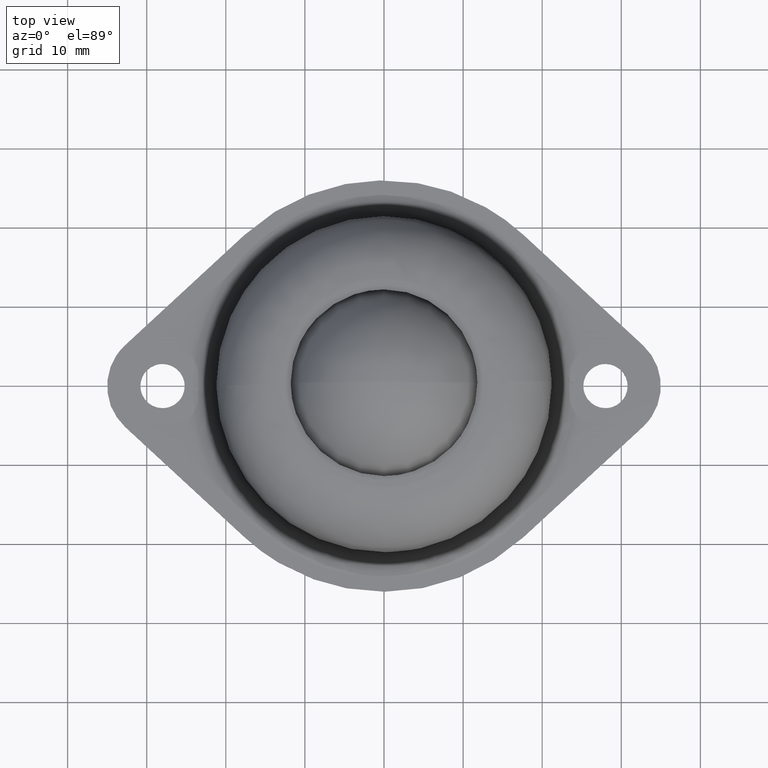
[diagram: clean part render]
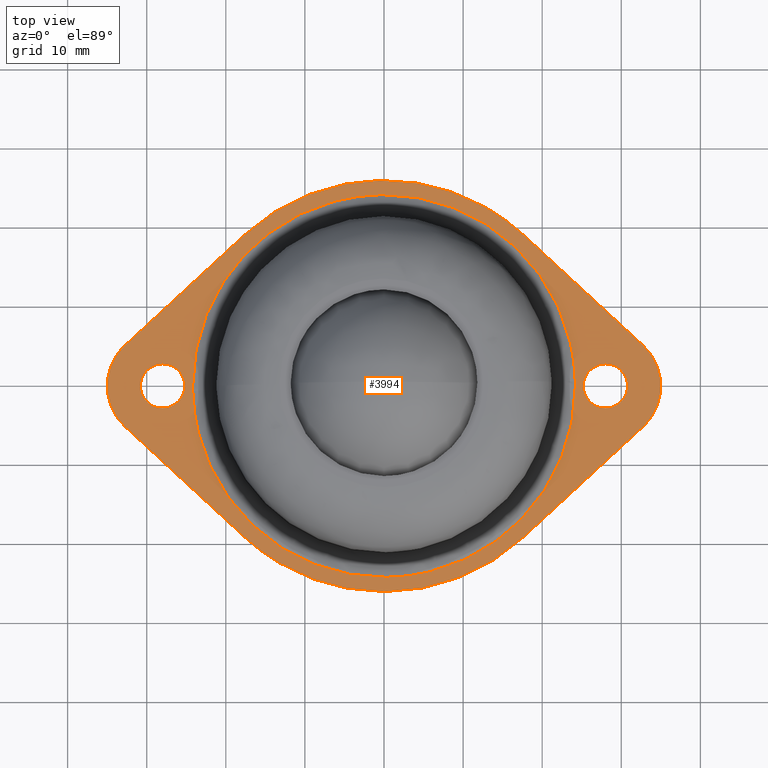
[diagram: same view with one face highlighted and labeled with its STEP entity id]
A machine part, top view. The second image highlights one B-rep face of the part: STEP entity #3994.
In plain terms, the highlighted face is a freeform B-spline surface patch.
Its self-contained STEP definition (entity closure, byte-faithful):
#2490=CARTESIAN_POINT('',(25.968951959783489,1.927392714593251,1.0));
#2491=VERTEX_POINT('',#2490);
#2497=CARTESIAN_POINT('',(25.199999999999999,0.0,1.0));
#2498=VERTEX_POINT('',#2497);
#2499=CARTESIAN_POINT('',(25.199999999999999,0.0,1.0));
#2500=CARTESIAN_POINT('',(25.199973421242841,0.188224897699242,0.999999999999999));
#2501=CARTESIAN_POINT('',(25.236995068752570,0.553574886776505,1.0));
#2502=CARTESIAN_POINT('',(25.444908174801778,1.234361321559058,1.0));
#2503=CARTESIAN_POINT('',(25.732427831506779,1.678589404813304,0.999999999999998));
#2504=CARTESIAN_POINT('',(25.968951959783489,1.927392714593251,1.0));
#2505=B_SPLINE_CURVE_WITH_KNOTS('',3,(#2499,#2500,#2501,#2502,#2503,#2504),.UNSPECIFIED.,.F.,.U.,(4,1,1,4),(0.000000023950812,0.564672074185945,1.096112349114503,2.125823479083822),.UNSPECIFIED.);
#2506=EDGE_CURVE('',#2498,#2491,#2505,.T.);
#2508=CARTESIAN_POINT('',(27.999999154508799,-2.799999999999872,1.0));
#2509=VERTEX_POINT('',#2508);
#2510=CARTESIAN_POINT('',(27.999999154508799,-2.799999999999872,1.0));
#2511=CARTESIAN_POINT('',(27.644883331728568,-2.800350481772285,0.999999999999999));
#2512=CARTESIAN_POINT('',(27.038093461507859,-2.682910345431413,1.000000000000003));
#2513=CARTESIAN_POINT('',(26.334143095025940,-2.284055842076838,0.999999999999998));
#2514=CARTESIAN_POINT('',(25.889561456533631,-1.865861122346844,1.000000000000001));
#2515=CARTESIAN_POINT('',(25.579808171783469,-1.437277371158870,0.999999999999999));
#2516=CARTESIAN_POINT('',(25.290719708908920,-0.835977749636753,1.0));
#2517=CARTESIAN_POINT('',(25.199780224807149,-0.332192779815591,0.999999999999999));
#2518=CARTESIAN_POINT('',(25.199999999999999,0.0,1.0));
#2519=B_SPLINE_CURVE_WITH_KNOTS('',3,(#2510,#2511,#2512,#2513,#2514,#2515,#2516,#2517,#2518),.UNSPECIFIED.,.F.,.U.,(4,1,1,1,1,1,4),(0.000000098548063,1.065202498120565,1.821171744755202,2.405270912355896,2.886345147545586,3.401779459272843,4.398256835523368),.UNSPECIFIED.);
#2520=EDGE_CURVE('',#2509,#2498,#2519,.T.);
#2522=CARTESIAN_POINT('',(30.031048040216511,-1.927392714593255,1.0));
#2523=VERTEX_POINT('',#2522);
#2524=CARTESIAN_POINT('',(30.031048040216511,-1.927392714593255,1.0));
#2525=CARTESIAN_POINT('',(29.851867157629499,-2.116331597186501,0.999999999999999));
#2526=CARTESIAN_POINT('',(29.468367066369652,-2.421295858934720,1.000000000000000));
#2527=CARTESIAN_POINT('',(28.769249975296280,-2.726929368976565,1.000000000000004));
#2528=CARTESIAN_POINT('',(28.272232493355261,-2.800112742756472,0.999999999999998));
#2529=CARTESIAN_POINT('',(27.999999154508799,-2.799999999999872,1.0));
#2530=B_SPLINE_CURVE_WITH_KNOTS('',3,(#2524,#2525,#2526,#2527,#2528,#2529),.UNSPECIFIED.,.F.,.U.,(4,1,1,4),(0.000000026221852,0.781150339007447,1.455772041165268,2.272434604637050),.UNSPECIFIED.);
#2531=EDGE_CURVE('',#2523,#2509,#2530,.T.);
#2571=CARTESIAN_POINT('',(30.800000000000001,0.0,1.0));
#2572=VERTEX_POINT('',#2571);
#2573=CARTESIAN_POINT('',(30.800000000000001,0.0,1.0));
#2574=CARTESIAN_POINT('',(30.800017719401190,-0.188221688659730,1.000000000000003));
#2575=CARTESIAN_POINT('',(30.757446168761440,-0.608955706871159,0.999999999999997));
#2576=CARTESIAN_POINT('',(30.528664928178230,-1.285427162218909,1.000000000000005));
#2577=CARTESIAN_POINT('',(30.229296161880399,-1.718654214940854,1.000000000000002));
#2578=CARTESIAN_POINT('',(30.031048040216511,-1.927392714593255,1.0));
#2579=B_SPLINE_CURVE_WITH_KNOTS('',3,(#2573,#2574,#2575,#2576,#2577,#2578),.UNSPECIFIED.,.F.,.U.,(4,1,1,4),(0.000000023950547,0.564672074185818,1.262201367420401,2.125823479083807),.UNSPECIFIED.);
#2580=EDGE_CURVE('',#2572,#2523,#2579,.T.);
#2582=CARTESIAN_POINT('',(28.000000845491218,2.799999999999872,1.0));
#2583=VERTEX_POINT('',#2582);
#2584=CARTESIAN_POINT('',(28.000000845491218,2.799999999999872,1.0));
#2585=CARTESIAN_POINT('',(28.274899713935561,2.800108221946402,0.999999999999998));
#2586=CARTESIAN_POINT('',(28.801701544830468,2.721782682552250,1.000000000000003));
#2587=CARTESIAN_POINT('',(29.547877516524728,2.380123426296433,0.999999999999998));
#2588=CARTESIAN_POINT('',(30.071579082011809,1.922719231740108,1.000000000000002));
#2589=CARTESIAN_POINT('',(30.438536831968559,1.408186841094348,0.999999999999997));
#2590=CARTESIAN_POINT('',(30.715611340586371,0.813106063968280,1.000000000000010));
#2591=CARTESIAN_POINT('',(30.800208439692909,0.309278637945049,0.999999999999989));
#2592=CARTESIAN_POINT('',(30.800000000000001,0.0,1.0));
#2593=B_SPLINE_CURVE_WITH_KNOTS('',3,(#2584,#2585,#2586,#2587,#2588,#2589,#2590,#2591,#2592),.UNSPECIFIED.,.F.,.U.,(4,1,1,1,1,1,4),(0.000000098573376,0.824665699015917,1.580635255141353,2.439657106825410,2.886345147554612,3.470503028095011,4.398256835523259),.UNSPECIFIED.);
#2594=EDGE_CURVE('',#2583,#2572,#2593,.T.);
#2596=CARTESIAN_POINT('',(25.968951959783489,1.927392714593251,1.0));
#2597=CARTESIAN_POINT('',(26.196921719001779,2.167983111778549,1.000000000000000));
#2598=CARTESIAN_POINT('',(26.594231770015298,2.459648169980239,0.999999999999999));
#2599=CARTESIAN_POINT('',(27.301776222588131,2.737328843908558,1.000000000000000));
#2600=CARTESIAN_POINT('',(27.727765224087300,2.800129395793765,1.000000000000001));
#2601=CARTESIAN_POINT('',(28.000000845491218,2.799999999999872,1.0));
#2602=B_SPLINE_CURVE_WITH_KNOTS('',3,(#2596,#2597,#2598,#2599,#2600,#2601),.UNSPECIFIED.,.F.,.U.,(4,1,1,4),(0.000000026225122,0.994201573523089,1.455772041165953,2.272434604637065),.UNSPECIFIED.);
#2603=EDGE_CURVE('',#2491,#2583,#2602,.T.);
#2690=CARTESIAN_POINT('',(-30.031048040216511,1.927392714593253,1.0));
#2691=VERTEX_POINT('',#2690);
#2697=CARTESIAN_POINT('',(-30.800000000000001,0.0,1.0));
#2698=VERTEX_POINT('',#2697);
#2699=CARTESIAN_POINT('',(-30.800000000000001,0.0,1.0));
#2700=CARTESIAN_POINT('',(-30.800256849308440,0.332205758625949,0.999999999999998));
#2701=CARTESIAN_POINT('',(-30.716270393622889,0.797029545476190,1.000000000000004));
#2702=CARTESIAN_POINT('',(-30.421939490760721,1.443623563409458,0.999999999999997));
#2703=CARTESIAN_POINT('',(-30.198781787522421,1.750748101902086,1.000000000000000));
#2704=CARTESIAN_POINT('',(-30.031048040216511,1.927392714593253,1.0));
#2705=B_SPLINE_CURVE_WITH_KNOTS('',3,(#2699,#2700,#2701,#2702,#2703,#2704),.UNSPECIFIED.,.F.,.U.,(4,1,1,4),(0.000000023950637,0.996483282876328,1.395066415730126,2.125823479083806),.UNSPECIFIED.);
#2706=EDGE_CURVE('',#2698,#2691,#2705,.T.);
#2708=CARTESIAN_POINT('',(-28.000000845491201,-2.799999999999872,1.0));
#2709=VERTEX_POINT('',#2708);
#2710=CARTESIAN_POINT('',(-28.000000845491201,-2.799999999999872,1.0));
#2711=CARTESIAN_POINT('',(-28.355119487596280,-2.800351157323797,1.0));
#2712=CARTESIAN_POINT('',(-28.961893965066800,-2.682897841856384,1.0));
#2713=CARTESIAN_POINT('',(-29.736292755341911,-2.244208654907654,1.0));
#2714=CARTESIAN_POINT('',(-30.237625426202751,-1.730423854099129,0.999999999999998));
#2715=CARTESIAN_POINT('',(-30.556273996539421,-1.183454946457047,1.000000000000001));
#2716=CARTESIAN_POINT('',(-30.750513241014549,-0.629925620482051,0.999999999999999));
#2717=CARTESIAN_POINT('',(-30.800060054805819,-0.229077006390447,1.000000000000003));
#2718=CARTESIAN_POINT('',(-30.800000000000001,0.0,1.0));
#2719=B_SPLINE_CURVE_WITH_KNOTS('',3,(#2710,#2711,#2712,#2713,#2714,#2715,#2716,#2717,#2718),.UNSPECIFIED.,.F.,.U.,(4,1,1,1,1,1,4),(0.000000098570556,1.065202498139127,1.821171744770200,2.645807579460606,3.195605844278639,3.711040155849163,4.398256835523267),.UNSPECIFIED.);
#2720=EDGE_CURVE('',#2709,#2698,#2719,.T.);
#2722=CARTESIAN_POINT('',(-25.968951959783489,-1.927392714593253,1.0));
#2723=VERTEX_POINT('',#2722);
#2724=CARTESIAN_POINT('',(-25.968951959783489,-1.927392714593253,1.0));
#2725=CARTESIAN_POINT('',(-26.107428792546148,-2.073365508782845,1.000000000000004));
#2726=CARTESIAN_POINT('',(-26.379741808303891,-2.304427490427256,0.999999999999995));
#2727=CARTESIAN_POINT('',(-26.855549894008359,-2.572823740229463,0.999999999999996));
#2728=CARTESIAN_POINT('',(-27.384571072013660,-2.753856023371658,1.000000000000022));
#2729=CARTESIAN_POINT('',(-27.786957241669750,-2.800039972948537,0.999999999999980));
#2730=CARTESIAN_POINT('',(-28.000000845491201,-2.799999999999872,1.0));
#2731=B_SPLINE_CURVE_WITH_KNOTS('',3,(#2724,#2725,#2726,#2727,#2728,#2729,#2730),.UNSPECIFIED.,.F.,.U.,(4,1,1,1,4),(0.000000026226631,0.603615896797822,1.065212435991397,1.633310791688826,2.272434604637051),.UNSPECIFIED.);
#2732=EDGE_CURVE('',#2723,#2709,#2731,.T.);
#2772=CARTESIAN_POINT('',(-25.199999999999999,0.0,1.0));
#2773=VERTEX_POINT('',#2772);
#2774=CARTESIAN_POINT('',(-25.199999999999999,0.0,1.0));
#2775=CARTESIAN_POINT('',(-25.199989663495270,-0.166078562572073,0.999999999999999));
#2776=CARTESIAN_POINT('',(-25.233573911888019,-0.542520759875150,0.999999999999999));
#2777=CARTESIAN_POINT('',(-25.437850266808280,-1.225762061038599,1.000000000000003));
#2778=CARTESIAN_POINT('',(-25.740085858360821,-1.686610441081308,0.999999999999995));
#2779=CARTESIAN_POINT('',(-25.968951959783489,-1.927392714593253,1.0));
#2780=B_SPLINE_CURVE_WITH_KNOTS('',3,(#2774,#2775,#2776,#2777,#2778,#2779),.UNSPECIFIED.,.F.,.U.,(4,1,1,4),(0.000000023949566,0.498239701281631,1.129340220183776,2.125823479083824),.UNSPECIFIED.);
#2781=EDGE_CURVE('',#2773,#2723,#2780,.T.);
#2783=CARTESIAN_POINT('',(-27.999999154508789,2.799999999999872,1.0));
#2784=VERTEX_POINT('',#2783);
#2785=CARTESIAN_POINT('',(-27.999999154508789,2.799999999999872,1.0));
#2786=CARTESIAN_POINT('',(-27.690724252621528,2.800189119311187,1.000000000000003));
#2787=CARTESIAN_POINT('',(-27.141079284342240,2.707959491169660,0.999999999999994));
#2788=CARTESIAN_POINT('',(-26.437424074776199,2.359173435847647,1.000000000000006));
#2789=CARTESIAN_POINT('',(-25.939381920456430,1.929483463386293,0.999999999999995));
#2790=CARTESIAN_POINT('',(-25.562300418716742,1.421052165552400,1.000000000000004));
#2791=CARTESIAN_POINT('',(-25.277986109779619,0.790245299074178,0.999999999999998));
#2792=CARTESIAN_POINT('',(-25.199874964057280,0.286353944472991,0.999999999999999));
#2793=CARTESIAN_POINT('',(-25.199999999999999,0.0,1.0));
#2794=B_SPLINE_CURVE_WITH_KNOTS('',3,(#2785,#2786,#2787,#2788,#2789,#2790,#2791,#2792,#2793),.UNSPECIFIED.,.F.,.U.,(4,1,1,1,1,1,4),(0.000000098548110,0.927756297414711,1.649354845515874,2.336550673854224,2.886345147545901,3.539225127852387,4.398256835523361),.UNSPECIFIED.);
#2795=EDGE_CURVE('',#2784,#2773,#2794,.T.);
#2797=CARTESIAN_POINT('',(-30.031048040216511,1.927392714593253,1.0));
#2798=CARTESIAN_POINT('',(-29.811222548795019,2.159371048825118,0.999999999999999));
#2799=CARTESIAN_POINT('',(-29.368025510316549,2.489133428188108,0.999999999999999));
#2800=CARTESIAN_POINT('',(-28.650944288010241,2.749804269152883,1.000000000000006));
#2801=CARTESIAN_POINT('',(-28.213040065328340,2.800033670385886,0.999999999999993));
#2802=CARTESIAN_POINT('',(-27.999999154508789,2.799999999999872,1.0));
#2803=B_SPLINE_CURVE_WITH_KNOTS('',3,(#2797,#2798,#2799,#2800,#2801,#2802),.UNSPECIFIED.,.F.,.U.,(4,1,1,4),(0.000000026226481,0.958683883978144,1.633310791688661,2.272434604637061),.UNSPECIFIED.);
#2804=EDGE_CURVE('',#2691,#2784,#2803,.T.);
#3409=CARTESIAN_POINT('',(-24.192352247396130,-0.608134938110757,1.000000000009965));
#3410=VERTEX_POINT('',#3409);
#3411=CARTESIAN_POINT('',(-24.199999999999999,0.0,1.0));
#3412=VERTEX_POINT('',#3411);
#3413=CARTESIAN_POINT('',(-24.192352247396130,-0.608134938110757,1.000000000009965));
#3414=CARTESIAN_POINT('',(-24.197448669709800,-0.405467624874414,1.000000000006643));
#3415=CARTESIAN_POINT('',(-24.199998221008009,-0.202731788623267,1.000000000003323));
#3416=CARTESIAN_POINT('',(-24.199999999999999,0.0,1.0));
#3417=B_SPLINE_CURVE_WITH_KNOTS('',3,(#3413,#3414,#3415,#3416),.UNSPECIFIED.,.F.,.U.,(4,4),(9.872769E-012,0.608200031036960),.UNSPECIFIED.);
#3418=EDGE_CURVE('',#3410,#3412,#3417,.T.);
#3437=CARTESIAN_POINT('',(24.192352247396130,0.608134938110752,1.000000000009965));
#3438=VERTEX_POINT('',#3437);
#3452=CARTESIAN_POINT('',(-0.304077485082230,24.198089495253750,1.000000000004983));
#3453=VERTEX_POINT('',#3452);
#3454=CARTESIAN_POINT('',(-0.304077485082230,24.198089495253750,1.000000000004983));
#3455=CARTESIAN_POINT('',(0.481463334631813,24.207959075437440,1.000000000005148));
#3456=CARTESIAN_POINT('',(2.495664211488906,24.135214314289101,1.000000000005553));
#3457=CARTESIAN_POINT('',(5.363449077482597,23.669751672229779,1.000000000006152));
#3458=CARTESIAN_POINT('',(8.000801849044244,22.877540328559078,1.000000000006687));
#3459=CARTESIAN_POINT('',(10.231343280681170,21.970773764954188,1.000000000007150));
#3460=CARTESIAN_POINT('',(12.193647527066950,20.948012188875680,1.000000000007546));
#3461=CARTESIAN_POINT('',(14.293098873722681,19.578936993809439,1.000000000007977));
#3462=CARTESIAN_POINT('',(16.131290009033371,18.097651032370511,1.000000000008350));
#3463=CARTESIAN_POINT('',(17.979987914952812,16.262312391915881,1.000000000008720));
#3464=CARTESIAN_POINT('',(19.910620783398709,13.902000044059550,1.000000000009124));
#3465=CARTESIAN_POINT('',(21.640681168729429,11.032180272099120,1.000000000009465));
#3466=CARTESIAN_POINT('',(22.885321415881290,8.032905750251604,1.000000000009716));
#3467=CARTESIAN_POINT('',(23.842492002992380,4.675881128871554,1.000000000009905));
#3468=CARTESIAN_POINT('',(24.151860160952950,2.227962727415263,1.000000000009961));
#3469=CARTESIAN_POINT('',(24.192352247396130,0.608134938110752,1.000000000009965));
#3470=B_SPLINE_CURVE_WITH_KNOTS('',3,(#3454,#3455,#3456,#3457,#3458,#3459,#3460,#3461,#3462,#3463,#3464,#3465,#3466,#3467,#3468,#3469),.UNSPECIFIED.,.F.,.U.,(4,1,1,1,1,1,1,1,1,1,1,1,1,4),(0.000000027832790,2.356816451351158,6.039365109413804,8.690792741793299,10.605719566030800,13.257150465588939,15.319387503597360,18.118111503503329,20.327603868102599,23.126334609953680,27.250797374373839,30.344131884838390,32.848269852201739,37.709211429184712),.UNSPECIFIED.);
#3471=EDGE_CURVE('',#3453,#3438,#3470,.T.);
#3473=CARTESIAN_POINT('',(-24.199999999999999,0.0,1.0));
#3474=CARTESIAN_POINT('',(-24.200053795397942,1.129306399135851,1.000000000000001));
#3475=CARTESIAN_POINT('',(-24.058817394107280,3.142412268996527,1.000000000000042));
#3476=CARTESIAN_POINT('',(-23.459233747036208,6.181817090687202,1.000000000000171));
#3477=CARTESIAN_POINT('',(-22.586140730369390,8.847486787489286,1.000000000000345));
#3478=CARTESIAN_POINT('',(-21.342433084207439,11.522482821705450,1.000000000000638));
#3479=CARTESIAN_POINT('',(-20.054785945213862,13.618619847224620,1.000000000000878));
#3480=CARTESIAN_POINT('',(-18.505947702803649,15.650549321210891,1.000000000001218));
#3481=CARTESIAN_POINT('',(-16.971051983046291,17.312625528740060,1.000000000001531));
#3482=CARTESIAN_POINT('',(-14.867891076815919,19.163554629678771,1.000000000001976));
#3483=CARTESIAN_POINT('',(-12.561934260067741,20.761655015508740,1.000000000002442));
#3484=CARTESIAN_POINT('',(-10.160309758107861,22.006458878366740,1.000000000002957));
#3485=CARTESIAN_POINT('',(-7.742515250865094,22.974444582324200,1.000000000003446));
#3486=CARTESIAN_POINT('',(-4.572051660319690,23.877148032280811,1.000000000004105));
#3487=CARTESIAN_POINT('',(-1.924279200966143,24.177925352123012,1.000000000004648));
#3488=CARTESIAN_POINT('',(-0.304077485082230,24.198089495253750,1.000000000004983));
#3489=B_SPLINE_CURVE_WITH_KNOTS('',3,(#3473,#3474,#3475,#3476,#3477,#3478,#3479,#3480,#3481,#3482,#3483,#3484,#3485,#3486,#3487,#3488),.UNSPECIFIED.,.F.,.U.,(4,1,1,1,1,1,1,1,1,1,1,1,1,4),(0.000000027843555,3.387918101209849,6.039370478473003,9.280009307577906,11.784142758634420,14.877479646169419,16.645118901846839,19.443804437992011,21.653332274526321,25.041295649224960,27.840027852684539,29.754955368030441,32.848299054563839,37.709244952919050),.UNSPECIFIED.);
#3490=EDGE_CURVE('',#3412,#3453,#3489,.T.);
#3524=CARTESIAN_POINT('',(24.199999999999999,0.0,1.0));
#3525=VERTEX_POINT('',#3524);
#3526=CARTESIAN_POINT('',(0.304077485082244,-24.198089495253750,1.000000000004983));
#3527=VERTEX_POINT('',#3526);
#3528=CARTESIAN_POINT('',(24.199999999999999,0.0,1.0));
#3529=CARTESIAN_POINT('',(24.200051566184449,-1.129306341161683,1.000000000000006));
#3530=CARTESIAN_POINT('',(24.041610870094740,-3.387916104696887,1.000000000000040));
#3531=CARTESIAN_POINT('',(23.313201780237051,-6.805845539358537,1.000000000000196));
#3532=CARTESIAN_POINT('',(22.094380734522151,-10.082781442620490,1.000000000000480));
#3533=CARTESIAN_POINT('',(20.507025905879050,-12.973427580696800,1.000000000000768));
#3534=CARTESIAN_POINT('',(18.565701122142411,-15.636107328816299,1.000000000001214));
#3535=CARTESIAN_POINT('',(16.317547766493899,-17.983103880876641,1.000000000001664));
#3536=CARTESIAN_POINT('',(13.720640952438441,-20.014614551971221,1.000000000002212));
#3537=CARTESIAN_POINT('',(10.929371050899780,-21.672800308188471,1.000000000002788));
#3538=CARTESIAN_POINT('',(8.075182290818130,-22.886657456597590,1.000000000003380));
#3539=CARTESIAN_POINT('',(4.473968147680772,-23.888245323290441,1.000000000004123));
#3540=CARTESIAN_POINT('',(1.924284266677746,-24.177935670849319,1.000000000004650));
#3541=CARTESIAN_POINT('',(0.304077485082244,-24.198089495253750,1.000000000004983));
#3542=B_SPLINE_CURVE_WITH_KNOTS('',3,(#3528,#3529,#3530,#3531,#3532,#3533,#3534,#3535,#3536,#3537,#3538,#3539,#3540,#3541),.UNSPECIFIED.,.F.,.U.,(4,1,1,1,1,1,1,1,1,1,1,4),(0.000000027840692,3.387918101207362,6.775879419581958,10.458424896135369,13.846377785282710,16.645118901845681,20.327621939425601,23.568278137384279,26.514313158542670,30.049560978753490,32.848299054563810,37.709244952919043),.UNSPECIFIED.);
#3543=EDGE_CURVE('',#3525,#3527,#3542,.T.);
#3545=CARTESIAN_POINT('',(24.192352247396130,0.608134938110752,1.000000000009965));
#3546=CARTESIAN_POINT('',(24.197448669709789,0.405467624874410,1.000000000006643));
#3547=CARTESIAN_POINT('',(24.199998221008030,0.202731788623266,1.000000000003323));
#3548=CARTESIAN_POINT('',(24.199999999999999,0.0,1.0));
#3549=B_SPLINE_CURVE_WITH_KNOTS('',3,(#3545,#3546,#3547,#3548),.UNSPECIFIED.,.F.,.U.,(4,4),(9.872880E-012,0.608200031036954),.UNSPECIFIED.);
#3550=EDGE_CURVE('',#3438,#3525,#3549,.T.);
#3558=CARTESIAN_POINT('',(0.304077485082244,-24.198089495253750,1.000000000004983));
#3559=CARTESIAN_POINT('',(-0.726949551724494,-24.211081766900811,1.000000000005198));
#3560=CARTESIAN_POINT('',(-2.741519756263788,-24.107494983230151,1.000000000005606));
#3561=CARTESIAN_POINT('',(-5.598921522220547,-23.598979757542430,1.000000000006199));
#3562=CARTESIAN_POINT('',(-8.000804306749890,-22.877552137843150,1.000000000006687));
#3563=CARTESIAN_POINT('',(-10.231338383055940,-21.970764592923530,1.000000000007146));
#3564=CARTESIAN_POINT('',(-12.586135400534930,-20.743500421070280,1.000000000007627));
#3565=CARTESIAN_POINT('',(-14.893313220161881,-19.147195197740679,1.000000000008117));
#3566=CARTESIAN_POINT('',(-17.176762746262462,-17.128488010400410,1.000000000008515));
#3567=CARTESIAN_POINT('',(-19.043871240518900,-15.034412062668791,1.000000000008963));
#3568=CARTESIAN_POINT('',(-20.913407407652489,-12.321508255593519,1.000000000009314));
#3569=CARTESIAN_POINT('',(-22.250403149240778,-9.685989252356302,1.000000000009592));
#3570=CARTESIAN_POINT('',(-23.287986957675781,-6.767956844295084,1.000000000009795));
#3571=CARTESIAN_POINT('',(-23.958226187406542,-3.893004877687685,1.000000000009926));
#3572=CARTESIAN_POINT('',(-24.164028921092449,-1.737091755116688,1.000000000009963));
#3573=CARTESIAN_POINT('',(-24.192352247396130,-0.608134938110757,1.000000000009965));
#3574=B_SPLINE_CURVE_WITH_KNOTS('',3,(#3558,#3559,#3560,#3561,#3562,#3563,#3564,#3565,#3566,#3567,#3568,#3569,#3570,#3571,#3572,#3573),.UNSPECIFIED.,.F.,.U.,(4,1,1,1,1,1,1,1,1,1,1,1,1,4),(0.000000027840045,3.093326412686714,6.039365109419212,8.690792741798074,10.605719566035191,13.257150465592270,16.645104104186100,19.001889179605499,22.389823806390758,25.041273387353421,28.871116113378928,31.227946597897191,34.321279061688159,37.709211429184727),.UNSPECIFIED.);
#3575=EDGE_CURVE('',#3527,#3410,#3574,.T.);
#3594=CARTESIAN_POINT('',(-32.750000000000000,5.141740950300781,1.0));
#3595=VERTEX_POINT('',#3594);
#3601=CARTESIAN_POINT('',(-17.642857142857149,19.097894958260049,1.0));
#3602=VERTEX_POINT('',#3601);
#3603=CARTESIAN_POINT('',(-32.750000000000000,5.141740950300781,1.0));
#3604=CARTESIAN_POINT('',(-17.642857142857149,19.097894958260049,1.0));
#3605=QUASI_UNIFORM_CURVE('',1,(#3603,#3604),.UNSPECIFIED.,.F.,.U.);
#3606=EDGE_CURVE('',#3595,#3602,#3605,.T.);
#3648=CARTESIAN_POINT('',(-32.750000000000000,-5.141740950300781,1.0));
#3649=VERTEX_POINT('',#3648);
#3655=CARTESIAN_POINT('',(-32.750000000000000,-5.141740950300781,1.0));
#3656=CARTESIAN_POINT('',(-33.169878033596113,-4.754061016272321,1.000000000000002));
#3657=CARTESIAN_POINT('',(-33.776657987584557,-4.036941045118616,0.999999999999995));
#3658=CARTESIAN_POINT('',(-34.387115677748760,-2.926649172714893,1.000000000000008));
#3659=CARTESIAN_POINT('',(-34.722027319801548,-2.021730408721604,0.999999999999990));
#3660=CARTESIAN_POINT('',(-34.937678337429162,-1.082054485110153,0.999999999999998));
#3661=CARTESIAN_POINT('',(-35.016503502609197,-0.210774227070121,1.000000000000023));
#3662=CARTESIAN_POINT('',(-34.979236832453552,0.752254452330416,0.999999999999981));
#3663=CARTESIAN_POINT('',(-34.788135635287531,1.882588944383679,1.000000000000014));
#3664=CARTESIAN_POINT('',(-34.317659186186567,3.129094530009751,0.999999999999984));
#3665=CARTESIAN_POINT('',(-33.587410272898239,4.275252445566439,1.000000000000025));
#3666=CARTESIAN_POINT('',(-33.037225764484148,4.876438380926464,0.999999999999977));
#3667=CARTESIAN_POINT('',(-32.750000000000000,5.141740950300781,1.0));
#3668=B_SPLINE_CURVE_WITH_KNOTS('',3,(#3655,#3656,#3657,#3658,#3659,#3660,#3661,#3662,#3663,#3664,#3665,#3666,#3667),.UNSPECIFIED.,.F.,.U.,(4,1,1,1,1,1,1,1,1,1,4),(0.000000030184850,1.714409625567136,2.797217284261183,3.789790983404574,4.601888162149415,5.684675554623876,6.406505393752505,7.489312774475341,9.113518610827132,10.376787941220471,11.549804300984510),.UNSPECIFIED.);
#3669=EDGE_CURVE('',#3649,#3595,#3668,.T.);
#3687=CARTESIAN_POINT('',(-17.642857142857149,-19.097894958260049,1.0));
#3688=VERTEX_POINT('',#3687);
#3694=CARTESIAN_POINT('',(-17.642857142857149,-19.097894958260049,1.0));
#3695=CARTESIAN_POINT('',(-32.750000000000000,-5.141740950300781,1.0));
#3696=QUASI_UNIFORM_CURVE('',1,(#3694,#3695),.UNSPECIFIED.,.F.,.U.);
#3697=EDGE_CURVE('',#3688,#3649,#3696,.T.);
#3737=CARTESIAN_POINT('',(32.750000000000000,5.141740950300781,1.0));
#3738=VERTEX_POINT('',#3737);
#3744=CARTESIAN_POINT('',(32.750000000000000,-5.141740950300781,1.0));
#3745=VERTEX_POINT('',#3744);
#3746=CARTESIAN_POINT('',(32.750000000000000,5.141740950300781,1.0));
#3747=CARTESIAN_POINT('',(33.169878033596113,4.754061016272321,1.000000000000002));
#3748=CARTESIAN_POINT('',(33.776657987584557,4.036941045118616,0.999999999999995));
#3749=CARTESIAN_POINT('',(34.387115677748760,2.926649172714893,1.000000000000008));
#3750=CARTESIAN_POINT('',(34.722027319801548,2.021730408721604,0.999999999999990));
#3751=CARTESIAN_POINT('',(34.937678337429162,1.082054485110153,0.999999999999998));
#3752=CARTESIAN_POINT('',(35.016503502609197,0.210774227070121,1.000000000000023));
#3753=CARTESIAN_POINT('',(34.979236832453552,-0.752254452330416,0.999999999999981));
#3754=CARTESIAN_POINT('',(34.788135635287531,-1.882588944383679,1.000000000000014));
#3755=CARTESIAN_POINT('',(34.317659186186567,-3.129094530009751,0.999999999999984));
#3756=CARTESIAN_POINT('',(33.587410272898239,-4.275252445566439,1.000000000000025));
#3757=CARTESIAN_POINT('',(33.037225764484148,-4.876438380926464,0.999999999999977));
#3758=CARTESIAN_POINT('',(32.750000000000000,-5.141740950300781,1.0));
#3759=B_SPLINE_CURVE_WITH_KNOTS('',3,(#3746,#3747,#3748,#3749,#3750,#3751,#3752,#3753,#3754,#3755,#3756,#3757,#3758),.UNSPECIFIED.,.F.,.U.,(4,1,1,1,1,1,1,1,1,1,4),(0.000000030184850,1.714409625567136,2.797217284261183,3.789790983404574,4.601888162149415,5.684675554623876,6.406505393752505,7.489312774475341,9.113518610827132,10.376787941220471,11.549804300984510),.UNSPECIFIED.);
#3760=EDGE_CURVE('',#3738,#3745,#3759,.T.);
#3783=CARTESIAN_POINT('',(17.642857142857149,-19.097894958260049,1.0));
#3784=VERTEX_POINT('',#3783);
#3785=CARTESIAN_POINT('',(17.642857142857149,-19.097894958260049,1.0));
#3786=CARTESIAN_POINT('',(32.750000000000000,-5.141740950300781,1.0));
#3787=QUASI_UNIFORM_CURVE('',1,(#3785,#3786),.UNSPECIFIED.,.F.,.U.);
#3788=EDGE_CURVE('',#3784,#3745,#3787,.T.);
#3810=CARTESIAN_POINT('',(17.642857142857149,19.097894958260049,1.0));
#3811=VERTEX_POINT('',#3810);
#3817=CARTESIAN_POINT('',(32.750000000000000,5.141740950300781,1.0));
#3818=CARTESIAN_POINT('',(17.642857142857149,19.097894958260049,1.0));
#3819=QUASI_UNIFORM_CURVE('',1,(#3817,#3818),.UNSPECIFIED.,.F.,.U.);
#3820=EDGE_CURVE('',#3738,#3811,#3819,.T.);
#3917=CARTESIAN_POINT('',(17.642857142857149,-19.097894958260049,1.0));
#3918=CARTESIAN_POINT('',(16.530167340780071,-20.125995491369899,1.000000000000003));
#3919=CARTESIAN_POINT('',(14.605493848488150,-21.614573116952300,1.000000000000000));
#3920=CARTESIAN_POINT('',(11.618972091506430,-23.318867615629252,1.000000000000003));
#3921=CARTESIAN_POINT('',(9.111516260120553,-24.402329969568481,0.999999999999992));
#3922=CARTESIAN_POINT('',(6.457751308374119,-25.231927221234809,1.000000000000009));
#3923=CARTESIAN_POINT('',(3.781674111024018,-25.777245491369619,0.999999999999996));
#3924=CARTESIAN_POINT('',(0.507674246605182,-26.073781698189229,1.000000000000004));
#3925=CARTESIAN_POINT('',(-3.237166547325696,-25.910123322473240,0.999999999999992));
#3926=CARTESIAN_POINT('',(-7.057613450165160,-25.119951217561070,1.000000000000004));
#3927=CARTESIAN_POINT('',(-10.337913442388720,-23.923963178052439,0.999999999999992));
#3928=CARTESIAN_POINT('',(-12.819134353317780,-22.666531372426810,1.000000000000008));
#3929=CARTESIAN_POINT('',(-15.251917834244839,-21.123655688040301,0.999999999999998));
#3930=CARTESIAN_POINT('',(-16.752678060349691,-19.920331494670410,0.999999999999992));
#3931=CARTESIAN_POINT('',(-17.642857142857149,-19.097894958260049,1.0));
#3932=B_SPLINE_CURVE_WITH_KNOTS('',3,(#3917,#3918,#3919,#3920,#3921,#3922,#3923,#3924,#3925,#3926,#3927,#3928,#3929,#3930,#3931),.UNSPECIFIED.,.F.,.U.,(4,1,1,1,1,1,1,1,1,1,1,1,4),(0.000000025836506,4.544819322290685,7.271710778262722,10.301598979895140,12.725513055058499,15.603904560350140,18.482291031781941,22.572616281703109,26.814449646370161,30.147326835620031,33.025715378939921,35.146647907775922,38.782487722300623),.UNSPECIFIED.);
#3933=EDGE_CURVE('',#3784,#3688,#3932,.T.);
#3938=CARTESIAN_POINT('',(-38.496504464095842,-28.597386045547129,1.0));
#3939=CARTESIAN_POINT('',(38.496501960700748,-28.597386045547129,1.0));
#3940=CARTESIAN_POINT('',(-38.496504464095842,28.597396738620400,1.0));
#3941=CARTESIAN_POINT('',(38.496501960700748,28.597396738620400,1.0));
#3942=B_SPLINE_SURFACE_WITH_KNOTS('',1,1,((#3938,#3940),(#3939,#3941)),.UNSPECIFIED.,.F.,.F.,.U.,(2,2),(2,2),(0.0,76.993006424796590),(0.0,57.194782784167529),.UNSPECIFIED.);
#3943=ORIENTED_EDGE('',*,*,#3933,.F.);
#3944=ORIENTED_EDGE('',*,*,#3788,.T.);
#3945=ORIENTED_EDGE('',*,*,#3760,.F.);
#3946=ORIENTED_EDGE('',*,*,#3820,.T.);
#3947=CARTESIAN_POINT('',(-17.642857142857149,19.097894958260049,1.0));
#3948=CARTESIAN_POINT('',(-16.901024742114789,19.783242779699499,1.000000000000005));
#3949=CARTESIAN_POINT('',(-15.337352432943440,21.067324178210171,0.999999999999997));
#3950=CARTESIAN_POINT('',(-12.911509711942919,22.625701629445949,0.999999999999995));
#3951=CARTESIAN_POINT('',(-10.288058132372500,23.936022457761581,1.000000000000011));
#3952=CARTESIAN_POINT('',(-7.344220535571208,25.019060544938881,0.999999999999999));
#3953=CARTESIAN_POINT('',(-4.232905562795565,25.719400716327979,0.999999999999996));
#3954=CARTESIAN_POINT('',(-0.962133105602479,26.044437943993920,1.000000000000006));
#3955=CARTESIAN_POINT('',(2.579939709224309,25.972280533141721,0.999999999999986));
#3956=CARTESIAN_POINT('',(5.975263758965316,25.382850644221229,1.000000000000003));
#3957=CARTESIAN_POINT('',(9.594055014439681,24.251548063117831,1.000000000000018));
#3958=CARTESIAN_POINT('',(12.487474977179421,22.900021744835119,0.999999999999939));
#3959=CARTESIAN_POINT('',(15.374624630853839,21.033234268555351,1.000000000000132));
#3960=CARTESIAN_POINT('',(16.863938878236912,19.817511867387012,0.999999999999818));
#3961=CARTESIAN_POINT('',(17.642857142857149,19.097894958260049,1.0));
#3962=B_SPLINE_CURVE_WITH_KNOTS('',3,(#3947,#3948,#3949,#3950,#3951,#3952,#3953,#3954,#3955,#3956,#3957,#3958,#3959,#3960,#3961),.UNSPECIFIED.,.F.,.U.,(4,1,1,1,1,1,1,1,1,1,1,1,4),(0.000000025879416,3.029878440081426,6.059759299447038,8.635160319224006,11.816541337988379,15.452398199398729,18.179319243574952,21.663643656280058,26.056977152264199,28.480889651045249,33.025715378946117,35.601126045687629,38.782487722300409),.UNSPECIFIED.);
#3963=EDGE_CURVE('',#3602,#3811,#3962,.T.);
#3964=ORIENTED_EDGE('',*,*,#3963,.F.);
#3965=ORIENTED_EDGE('',*,*,#3606,.F.);
#3966=ORIENTED_EDGE('',*,*,#3669,.F.);
#3967=ORIENTED_EDGE('',*,*,#3697,.F.);
#3968=EDGE_LOOP('',(#3943,#3944,#3945,#3946,#3964,#3965,#3966,#3967));
#3969=FACE_OUTER_BOUND('',#3968,.T.);
#3970=ORIENTED_EDGE('',*,*,#3550,.T.);
#3971=ORIENTED_EDGE('',*,*,#3543,.T.);
#3972=ORIENTED_EDGE('',*,*,#3575,.T.);
#3973=ORIENTED_EDGE('',*,*,#3418,.T.);
#3974=ORIENTED_EDGE('',*,*,#3490,.T.);
#3975=ORIENTED_EDGE('',*,*,#3471,.T.);
#3976=EDGE_LOOP('',(#3970,#3971,#3972,#3973,#3974,#3975));
#3977=FACE_BOUND('',#3976,.T.);
#3978=ORIENTED_EDGE('',*,*,#2720,.T.);
#3979=ORIENTED_EDGE('',*,*,#2706,.T.);
#3980=ORIENTED_EDGE('',*,*,#2804,.T.);
#3981=ORIENTED_EDGE('',*,*,#2795,.T.);
#3982=ORIENTED_EDGE('',*,*,#2781,.T.);
#3983=ORIENTED_EDGE('',*,*,#2732,.T.);
#3984=EDGE_LOOP('',(#3978,#3979,#3980,#3981,#3982,#3983));
#3985=FACE_BOUND('',#3984,.T.);
#3986=ORIENTED_EDGE('',*,*,#2520,.T.);
#3987=ORIENTED_EDGE('',*,*,#2506,.T.);
#3988=ORIENTED_EDGE('',*,*,#2603,.T.);
#3989=ORIENTED_EDGE('',*,*,#2594,.T.);
#3990=ORIENTED_EDGE('',*,*,#2580,.T.);
#3991=ORIENTED_EDGE('',*,*,#2531,.T.);
#3992=EDGE_LOOP('',(#3986,#3987,#3988,#3989,#3990,#3991));
#3993=FACE_BOUND('',#3992,.T.);
#3994=ADVANCED_FACE('',(#3969,#3977,#3985,#3993),#3942,.T.);